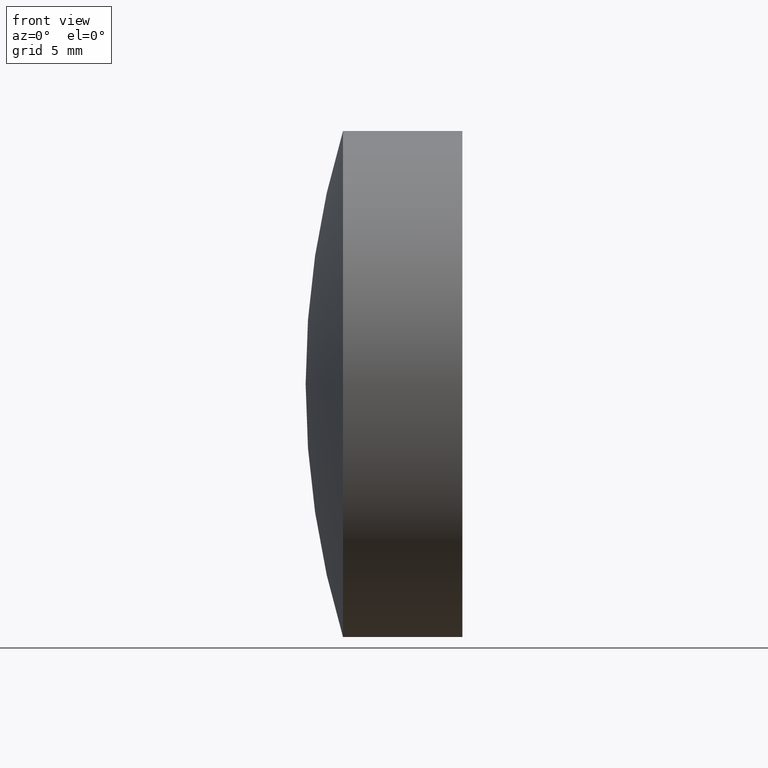
[diagram: clean part render]
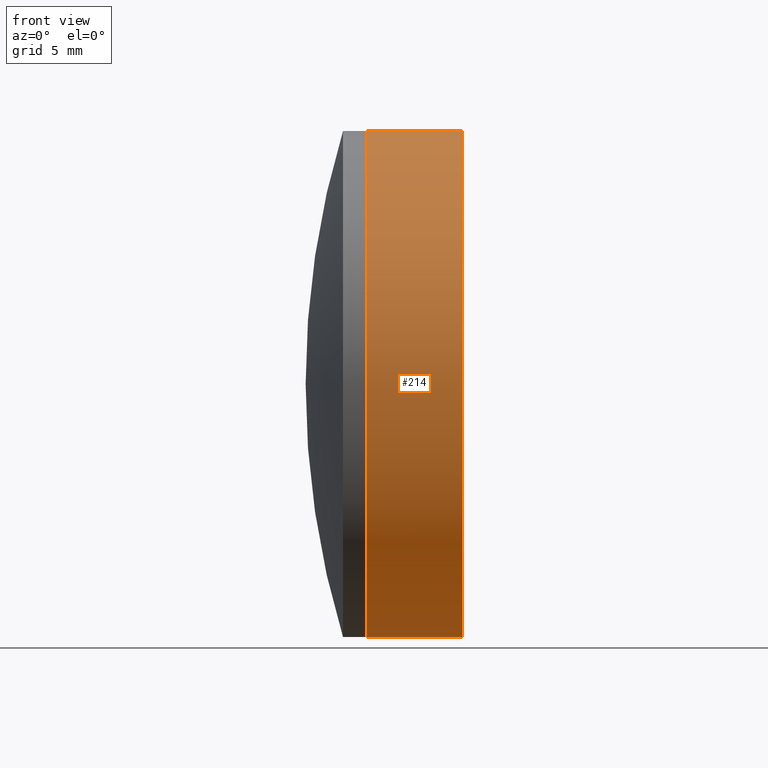
[diagram: same view with one face highlighted and labeled with its STEP entity id]
A machine part, front view. The second image highlights one B-rep face of the part: STEP entity #214.
In plain terms, the highlighted cylindrical surface (partial cylindrical patch) has radius 12.7 mm, axis along (-1, -0, -0).
Its self-contained STEP definition (entity closure, byte-faithful):
#2 = CARTESIAN_POINT ( 'NONE',  ( 63.77435168679243600, 0.0000000000000000000, 0.0000000000000000000 ) ) ;
#22 = AXIS2_PLACEMENT_3D ( 'NONE', #324, #163, #144 ) ;
#37 = VECTOR ( 'NONE', #209, 1000.000000000000000 ) ;
#40 = DIRECTION ( 'NONE',  ( -1.000000000000000000, -0.0000000000000000000, -0.0000000000000000000 ) ) ;
#69 = ORIENTED_EDGE ( 'NONE', *, *, #194, .T. ) ;
#74 = DIRECTION ( 'NONE',  ( 0.0000000000000000000, 0.0000000000000000000, 1.000000000000000000 ) ) ;
#79 = CARTESIAN_POINT ( 'NONE',  ( 58.98864538849122900, 0.0000000000000000000, 0.0000000000000000000 ) ) ;
#90 = CARTESIAN_POINT ( 'NONE',  ( 58.98864538849122900, 1.555301434917138800E-015, -12.70000000000004200 ) ) ;
#92 = CIRCLE ( 'NONE', #204, 12.70000000000004200 ) ;
#97 = ORIENTED_EDGE ( 'NONE', *, *, #286, .T. ) ;
#98 = VERTEX_POINT ( 'NONE', #316 ) ;
#107 = CYLINDRICAL_SURFACE ( 'NONE', #22, 12.70000000000004200 ) ;
#112 = DIRECTION ( 'NONE',  ( -1.000000000000000000, -0.0000000000000000000, -0.0000000000000000000 ) ) ;
#115 = ORIENTED_EDGE ( 'NONE', *, *, #237, .F. ) ;
#121 = FACE_OUTER_BOUND ( 'NONE', #174, .T. ) ;
#126 = DIRECTION ( 'NONE',  ( 0.0000000000000000000, 0.0000000000000000000, 1.000000000000000000 ) ) ;
#129 = CARTESIAN_POINT ( 'NONE',  ( 63.77435168679243600, -1.555301434917144300E-015, 12.70000000000004700 ) ) ;
#144 = DIRECTION ( 'NONE',  ( 0.0000000000000000000, 0.0000000000000000000, 1.000000000000000000 ) ) ;
#163 = DIRECTION ( 'NONE',  ( -1.000000000000000000, -0.0000000000000000000, -0.0000000000000000000 ) ) ;
#165 = AXIS2_PLACEMENT_3D ( 'NONE', #79, #223, #126 ) ;
#174 = EDGE_LOOP ( 'NONE', ( #260, #69, #97, #115 ) ) ;
#179 = EDGE_CURVE ( 'NONE', #279, #192, #335, .T. ) ;
#192 = VERTEX_POINT ( 'NONE', #90 ) ;
#194 = EDGE_CURVE ( 'NONE', #279, #230, #92, .T. ) ;
#204 = AXIS2_PLACEMENT_3D ( 'NONE', #2, #112, #74 ) ;
#209 = DIRECTION ( 'NONE',  ( -1.000000000000000000, -0.0000000000000000000, -0.0000000000000000000 ) ) ;
#210 = CARTESIAN_POINT ( 'NONE',  ( 63.77435168679243600, 0.0000000000000000000, -12.70000000000004700 ) ) ;
#213 = CIRCLE ( 'NONE', #165, 12.70000000000004200 ) ;
#214 = ADVANCED_FACE ( 'NONE', ( #121 ), #107, .T. ) ;
#221 = LINE ( 'NONE', #239, #37 ) ;
#223 = DIRECTION ( 'NONE',  ( -1.000000000000000000, -0.0000000000000000000, -0.0000000000000000000 ) ) ;
#230 = VERTEX_POINT ( 'NONE', #129 ) ;
#237 = EDGE_CURVE ( 'NONE', #192, #98, #213, .T. ) ;
#239 = CARTESIAN_POINT ( 'NONE',  ( -0.5519199926577972300, 0.0000000000000000000, 12.70000000000004200 ) ) ;
#260 = ORIENTED_EDGE ( 'NONE', *, *, #179, .F. ) ;
#279 = VERTEX_POINT ( 'NONE', #210 ) ;
#281 = CARTESIAN_POINT ( 'NONE',  ( -0.5519199926577972300, 1.555301434917143600E-015, -12.70000000000004200 ) ) ;
#286 = EDGE_CURVE ( 'NONE', #230, #98, #221, .T. ) ;
#303 = VECTOR ( 'NONE', #40, 1000.000000000000000 ) ;
#316 = CARTESIAN_POINT ( 'NONE',  ( 58.98864538849122900, 0.0000000000000000000, 12.70000000000000500 ) ) ;
#324 = CARTESIAN_POINT ( 'NONE',  ( -0.5519199926577972300, 0.0000000000000000000, 0.0000000000000000000 ) ) ;
#335 = LINE ( 'NONE', #281, #303 ) ;